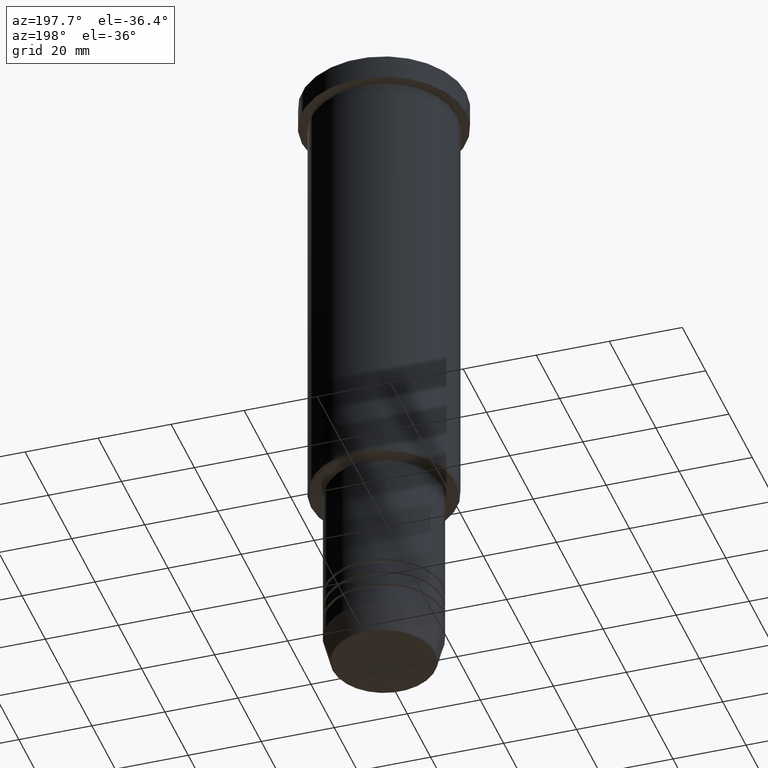
[diagram: clean part render]
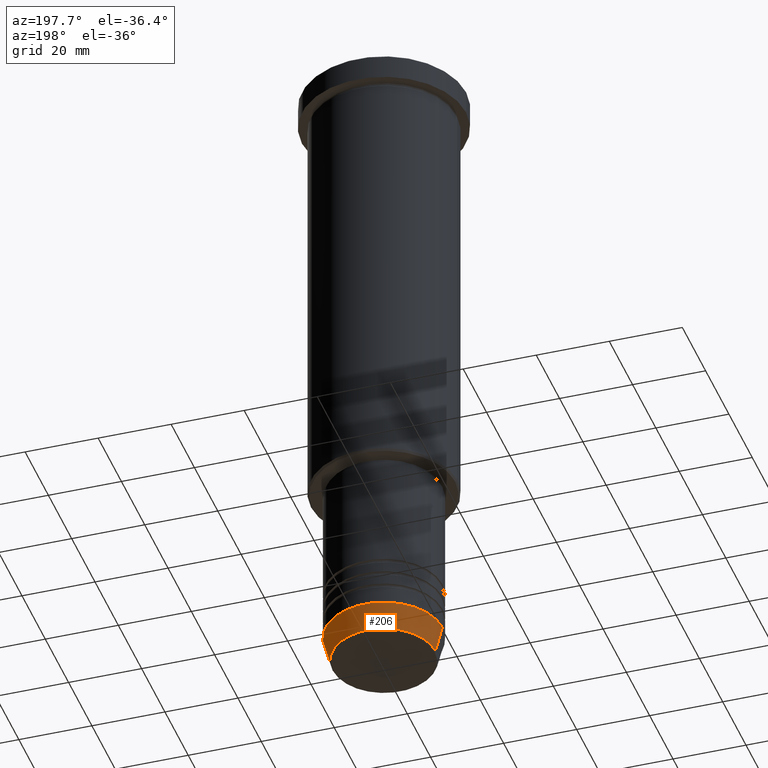
[diagram: same view with one face highlighted and labeled with its STEP entity id]
A machine part, auxiliary view. The second image highlights one B-rep face of the part: STEP entity #206.
In plain terms, the highlighted conical surface has half-angle 15 deg.
Its self-contained STEP definition (entity closure, byte-faithful):
#3 = EDGE_CURVE ( 'NONE', #394, #940, #1105, .T. ) ;
#11 = VECTOR ( 'NONE', #867, 1000.000000000000000 ) ;
#26 = AXIS2_PLACEMENT_3D ( 'NONE', #833, #582, #934 ) ;
#55 = CARTESIAN_POINT ( 'NONE',  ( 0.000000000000000000, 0.000000000000000000, -172.5000000000000284 ) ) ;
#81 = VERTEX_POINT ( 'NONE', #1122 ) ;
#85 = ORIENTED_EDGE ( 'NONE', *, *, #1139, .F. ) ;
#162 = ORIENTED_EDGE ( 'NONE', *, *, #3, .F. ) ;
#172 = CARTESIAN_POINT ( 'NONE',  ( -14.08968047592163941, 1.842461544110202058E-15, -179.6294095225512422 ) ) ;
#175 = CARTESIAN_POINT ( 'NONE',  ( -16.00000000000000000, 1.959434878635765131E-15, -172.5000000000000284 ) ) ;
#176 = CARTESIAN_POINT ( 'NONE',  ( 16.00000000000000000, 0.000000000000000000, -172.5000000000000284 ) ) ;
#205 = VECTOR ( 'NONE', #1092, 1000.000000000000000 ) ;
#206 = ADVANCED_FACE ( 'NONE', ( #1020 ), #1123, .T. ) ;
#249 = LINE ( 'NONE', #176, #205 ) ;
#271 = ORIENTED_EDGE ( 'NONE', *, *, #840, .T. ) ;
#365 = DIRECTION ( 'NONE',  ( 1.000000000000000000, 0.000000000000000000, 0.000000000000000000 ) ) ;
#386 = DIRECTION ( 'NONE',  ( -0.000000000000000000, -0.000000000000000000, 1.000000000000000000 ) ) ;
#394 = VERTEX_POINT ( 'NONE', #997 ) ;
#453 = AXIS2_PLACEMENT_3D ( 'NONE', #55, #545, #365 ) ;
#486 = DIRECTION ( 'NONE',  ( 1.000000000000000000, 0.000000000000000000, 0.000000000000000000 ) ) ;
#493 = CIRCLE ( 'NONE', #612, 14.08968047592163941 ) ;
#545 = DIRECTION ( 'NONE',  ( -0.000000000000000000, -0.000000000000000000, 1.000000000000000000 ) ) ;
#573 = ORIENTED_EDGE ( 'NONE', *, *, #770, .T. ) ;
#582 = DIRECTION ( 'NONE',  ( -0.000000000000000000, -0.000000000000000000, 1.000000000000000000 ) ) ;
#612 = AXIS2_PLACEMENT_3D ( 'NONE', #917, #386, #486 ) ;
#712 = EDGE_LOOP ( 'NONE', ( #271, #573, #162, #85 ) ) ;
#770 = EDGE_CURVE ( 'NONE', #1148, #940, #1025, .T. ) ;
#833 = CARTESIAN_POINT ( 'NONE',  ( 0.000000000000000000, 0.000000000000000000, -172.5000000000000284 ) ) ;
#840 = EDGE_CURVE ( 'NONE', #81, #1148, #493, .T. ) ;
#867 = DIRECTION ( 'NONE',  ( -0.2588190451025213501, 3.169619151431772337E-17, 0.9659258262890680902 ) ) ;
#897 = CARTESIAN_POINT ( 'NONE',  ( -16.00000000000000000, 1.959434878635765131E-15, -172.5000000000000284 ) ) ;
#917 = CARTESIAN_POINT ( 'NONE',  ( 0.000000000000000000, 0.000000000000000000, -179.6294095225512422 ) ) ;
#934 = DIRECTION ( 'NONE',  ( 1.000000000000000000, 0.000000000000000000, 0.000000000000000000 ) ) ;
#940 = VERTEX_POINT ( 'NONE', #897 ) ;
#997 = CARTESIAN_POINT ( 'NONE',  ( 16.00000000000000000, 0.000000000000000000, -172.5000000000000284 ) ) ;
#1020 = FACE_OUTER_BOUND ( 'NONE', #712, .T. ) ;
#1025 = LINE ( 'NONE', #175, #11 ) ;
#1092 = DIRECTION ( 'NONE',  ( 0.2588190451025213501, 0.000000000000000000, 0.9659258262890680902 ) ) ;
#1105 = CIRCLE ( 'NONE', #453, 16.00000000000000000 ) ;
#1122 = CARTESIAN_POINT ( 'NONE',  ( 14.08968047592163941, 0.000000000000000000, -179.6294095225512422 ) ) ;
#1123 = CONICAL_SURFACE ( 'NONE', #26, 16.00000000000000000, 0.2617993877991500740 ) ;
#1139 = EDGE_CURVE ( 'NONE', #81, #394, #249, .T. ) ;
#1148 = VERTEX_POINT ( 'NONE', #172 ) ;